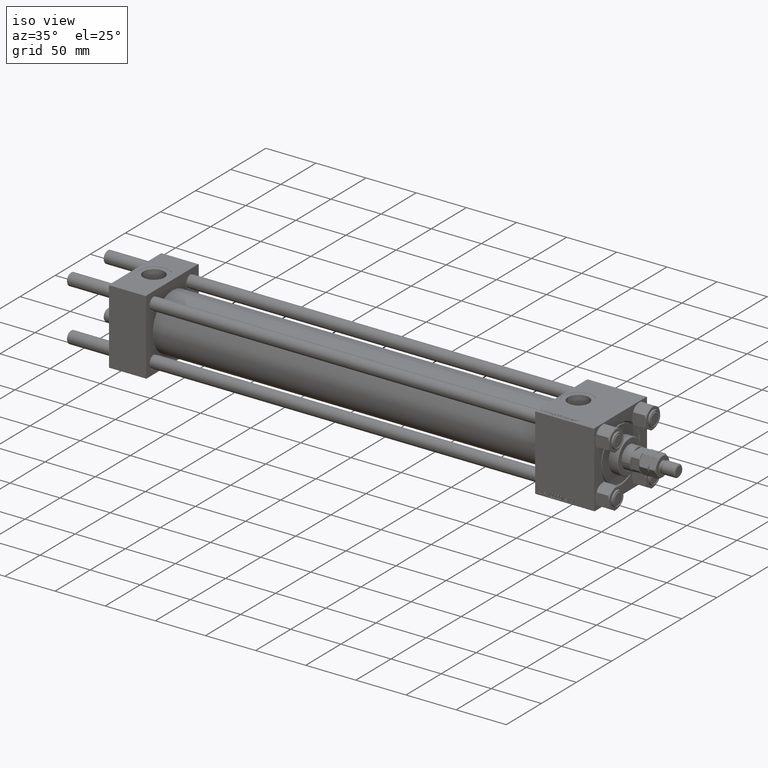
[diagram: clean part render]
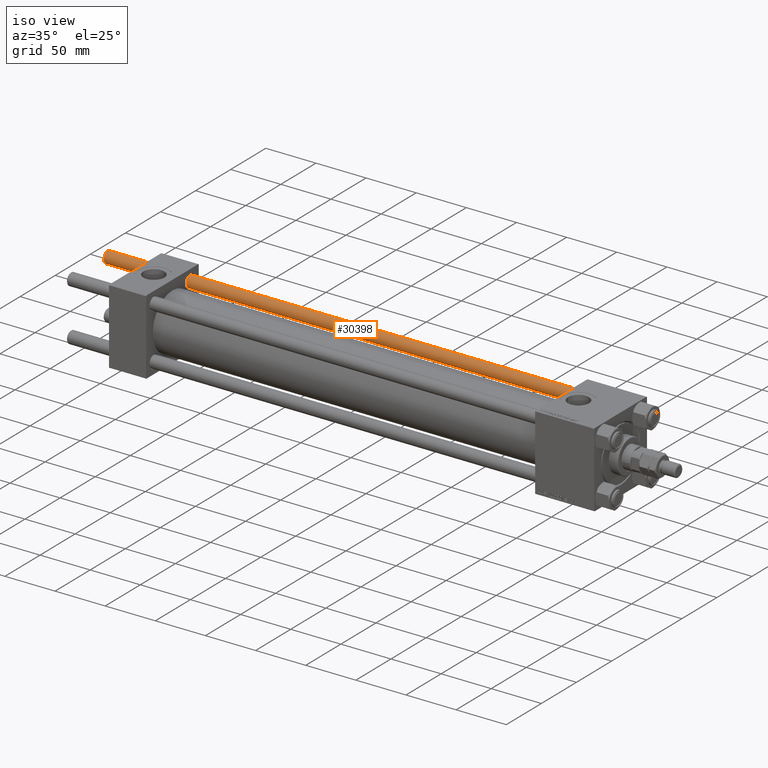
[diagram: same view with one face highlighted and labeled with its STEP entity id]
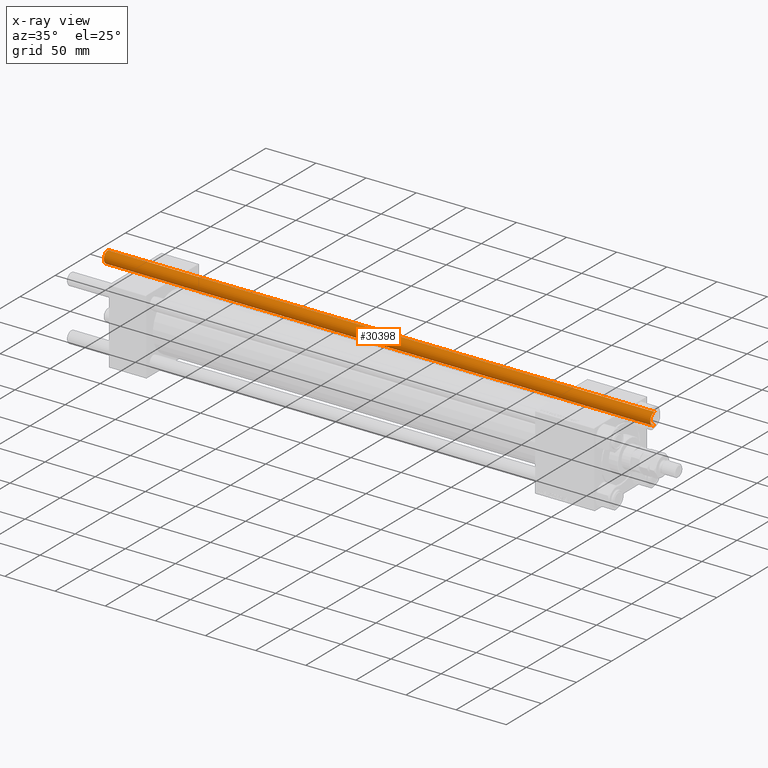
[diagram: x-ray of the same camera — body ghosted, the highlighted face saturated]
A machine part, iso view. The second image highlights one B-rep face of the part: STEP entity #30398.
The next image is the same camera in x-ray: the body ghosted, the highlighted face saturated — about 0% of this face is hidden behind the body in this view.
In plain terms, the highlighted cylindrical surface (edge-blend (fillet) strip) has radius 6 mm, axis along (-1, -0, -0).
Its self-contained STEP definition (entity closure, byte-faithful):
#3772 = EDGE_CURVE ( 'NONE', #5468, #42660, #13963, .T. ) ;
#4394 = FACE_OUTER_BOUND ( 'NONE', #6223, .T. ) ;
#4436 = VECTOR ( 'NONE', #41208, 1000.000000000000000 ) ;
#5468 = VERTEX_POINT ( 'NONE', #15351 ) ;
#5492 = EDGE_CURVE ( 'NONE', #29930, #42660, #48099, .T. ) ;
#6223 = EDGE_LOOP ( 'NONE', ( #8037, #49160, #21967, #36394 ) ) ;
#8037 = ORIENTED_EDGE ( 'NONE', *, *, #3772, .F. ) ;
#9607 = CIRCLE ( 'NONE', #49392, 6.000000000000000888 ) ;
#11193 = DIRECTION ( 'NONE',  ( -0.000000000000000000, -0.000000000000000000, 1.000000000000000000 ) ) ;
#12689 = AXIS2_PLACEMENT_3D ( 'NONE', #45287, #36051, #23601 ) ;
#13963 = LINE ( 'NONE', #34703, #50512 ) ;
#15351 = CARTESIAN_POINT ( 'NONE',  ( 6.000000000000000888, 7.347880794884120722E-16, 545.5000000000001137 ) ) ;
#15437 = EDGE_CURVE ( 'NONE', #17515, #29930, #25384, .T. ) ;
#15865 = DIRECTION ( 'NONE',  ( 0.000000000000000000, 0.000000000000000000, -1.000000000000000000 ) ) ;
#16844 = CARTESIAN_POINT ( 'NONE',  ( -6.000000000000000888, 0.000000000000000000, 546.0000000000000000 ) ) ;
#16857 = CARTESIAN_POINT ( 'NONE',  ( -6.000000000000000888, 0.000000000000000000, 545.5000000000001137 ) ) ;
#17515 = VERTEX_POINT ( 'NONE', #16857 ) ;
#17634 = CARTESIAN_POINT ( 'NONE',  ( 6.000000000000000888, 7.347880794884120722E-16, 0.5000000000000559552 ) ) ;
#19484 = CARTESIAN_POINT ( 'NONE',  ( 0.000000000000000000, 0.000000000000000000, 0.5000000000000559552 ) ) ;
#21967 = ORIENTED_EDGE ( 'NONE', *, *, #15437, .T. ) ;
#23601 = DIRECTION ( 'NONE',  ( -1.000000000000000000, 0.000000000000000000, 0.000000000000000000 ) ) ;
#25384 = LINE ( 'NONE', #16844, #4436 ) ;
#29930 = VERTEX_POINT ( 'NONE', #50911 ) ;
#30398 = ADVANCED_FACE ( 'NONE', ( #4394 ), #31648, .T. ) ;
#31648 = CYLINDRICAL_SURFACE ( 'NONE', #12689, 6.000000000000000888 ) ;
#34703 = CARTESIAN_POINT ( 'NONE',  ( 6.000000000000000888, 7.347880794884120722E-16, 546.0000000000000000 ) ) ;
#36051 = DIRECTION ( 'NONE',  ( -0.000000000000000000, -0.000000000000000000, -1.000000000000000000 ) ) ;
#36394 = ORIENTED_EDGE ( 'NONE', *, *, #5492, .T. ) ;
#39706 = CARTESIAN_POINT ( 'NONE',  ( 0.000000000000000000, 0.000000000000000000, 545.5000000000001137 ) ) ;
#40656 = AXIS2_PLACEMENT_3D ( 'NONE', #19484, #11193, #43345 ) ;
#41208 = DIRECTION ( 'NONE',  ( -0.000000000000000000, -0.000000000000000000, -1.000000000000000000 ) ) ;
#42660 = VERTEX_POINT ( 'NONE', #17634 ) ;
#42997 = EDGE_CURVE ( 'NONE', #5468, #17515, #9607, .T. ) ;
#43345 = DIRECTION ( 'NONE',  ( 1.000000000000000000, 0.000000000000000000, 0.000000000000000000 ) ) ;
#43611 = DIRECTION ( 'NONE',  ( 1.000000000000000000, 0.000000000000000000, 0.000000000000000000 ) ) ;
#45287 = CARTESIAN_POINT ( 'NONE',  ( 0.000000000000000000, 0.000000000000000000, 546.0000000000000000 ) ) ;
#48099 = CIRCLE ( 'NONE', #40656, 6.000000000000000888 ) ;
#49160 = ORIENTED_EDGE ( 'NONE', *, *, #42997, .T. ) ;
#49392 = AXIS2_PLACEMENT_3D ( 'NONE', #39706, #15865, #43611 ) ;
#50512 = VECTOR ( 'NONE', #50517, 1000.000000000000000 ) ;
#50517 = DIRECTION ( 'NONE',  ( -0.000000000000000000, -0.000000000000000000, -1.000000000000000000 ) ) ;
#50911 = CARTESIAN_POINT ( 'NONE',  ( -6.000000000000000888, 0.000000000000000000, 0.5000000000000559552 ) ) ;